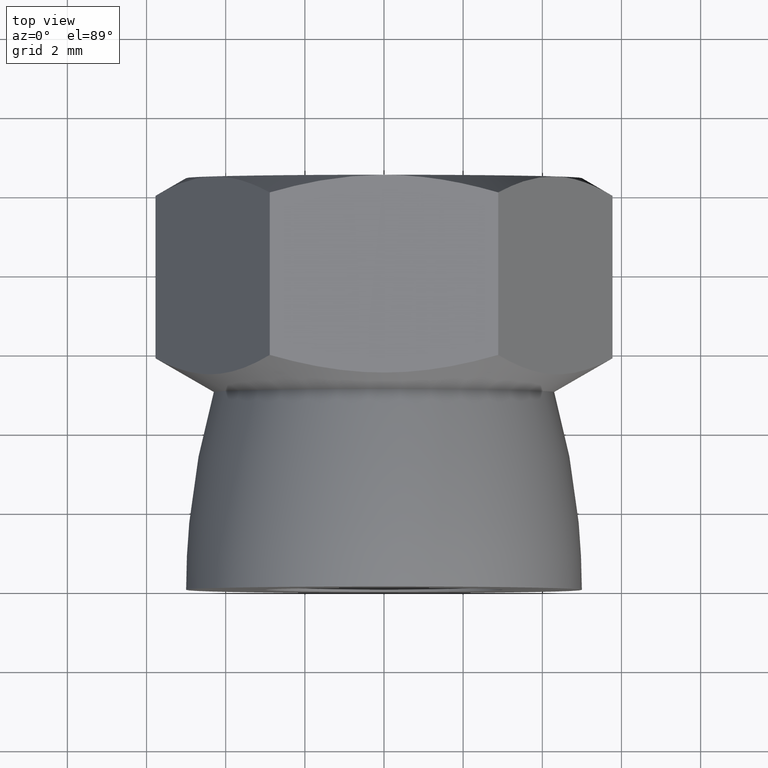
[diagram: clean part render]
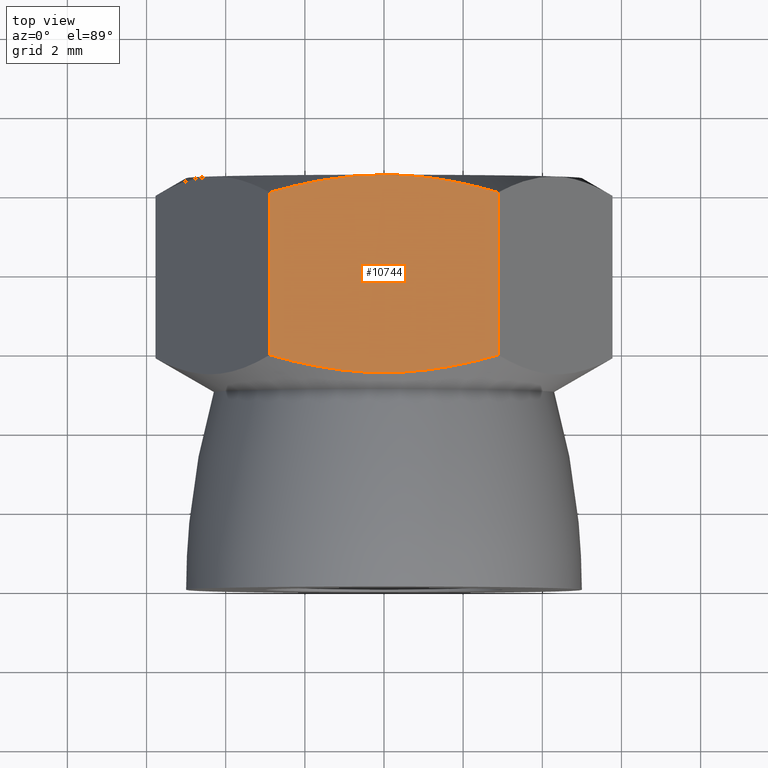
[diagram: same view with one face highlighted and labeled with its STEP entity id]
A machine part, top view. The second image highlights one B-rep face of the part: STEP entity #10744.
In plain terms, the highlighted planar face has unit normal (-0, -0, 1).
Its self-contained STEP definition (entity closure, byte-faithful):
#405 = DIRECTION ( 'NONE',  ( -1.502314598737159524E-16, -4.702619878469625251E-33, 1.000000000000000000 ) ) ;
#607 = DIRECTION ( 'NONE',  ( 3.130249737586675703E-17, -1.000000000000000000, -0.000000000000000000 ) ) ;
#961 = LINE ( 'NONE', #10846, #4904 ) ;
#1360 = PLANE ( 'NONE',  #1776 ) ;
#1776 = AXIS2_PLACEMENT_3D ( 'NONE', #6687, #405, #14448 ) ;
#2018 = ORIENTED_EDGE ( 'NONE', *, *, #15429, .F. ) ;
#2390 = CARTESIAN_POINT ( 'NONE',  ( -0.9718922986298202948, 5.446004199421927261, 4.999999999999997335 ) ) ;
#2754 = B_SPLINE_CURVE_WITH_KNOTS ( 'NONE', 3,
 ( #13995, #5002, #7631, #11419, #13839, #10083 ),
 .UNSPECIFIED., .F., .F.,
 ( 4, 2, 4 ),
 ( 0.008070708573309187672, 0.009531758523483256293, 0.01099280847365732491 ),
 .UNSPECIFIED. ) ;
#2920 = ORIENTED_EDGE ( 'NONE', *, *, #9992, .F. ) ;
#3239 = CARTESIAN_POINT ( 'NONE',  ( -1.148121561336246678E-16, 10.40414518843273228, 4.999999999999998224 ) ) ;
#4169 = VERTEX_POINT ( 'NONE', #5679 ) ;
#4448 = CARTESIAN_POINT ( 'NONE',  ( -2.417244626924480499, 10.09309811635487719, 4.999999999999998224 ) ) ;
#4617 = CARTESIAN_POINT ( 'NONE',  ( -1.936377641173854691, 10.20677601518782041, 4.999999999999998224 ) ) ;
#4781 = CARTESIAN_POINT ( 'NONE',  ( 2.420118327524843238, 5.716021826418211660, 4.999999999999998224 ) ) ;
#4835 = CARTESIAN_POINT ( 'NONE',  ( 1.947366201742063652, 5.603832604811247897, 4.999999999999998224 ) ) ;
#4904 = VECTOR ( 'NONE', #607, 1000.000000000000000 ) ;
#5002 = CARTESIAN_POINT ( 'NONE',  ( 0.4881033300985025414, 10.40414518843273051, 4.999999999999998224 ) ) ;
#5582 = CARTESIAN_POINT ( 'NONE',  ( 2.886751345948128655, 5.850727175817934445, 4.999999999999999112 ) ) ;
#5679 = CARTESIAN_POINT ( 'NONE',  ( -2.886751345948129099, 5.850727175817934445, 4.999999999999998224 ) ) ;
#5974 = CARTESIAN_POINT ( 'NONE',  ( -0.4870926242147031737, 5.404096240944794793, 4.999999999999999112 ) ) ;
#6185 = CARTESIAN_POINT ( 'NONE',  ( 2.886751345948128655, 5.850727175817934445, 4.999999999999999112 ) ) ;
#6501 = DIRECTION ( 'NONE',  ( 3.130249737586675703E-17, -1.000000000000000000, -0.000000000000000000 ) ) ;
#6687 = CARTESIAN_POINT ( 'NONE',  ( 2.886751345948126879, 15.40414518843273584, 4.999999999999998224 ) ) ;
#6702 = CARTESIAN_POINT ( 'NONE',  ( 2.886751345948129099, 9.957563201047536339, 4.999999999999997335 ) ) ;
#6916 = ORIENTED_EDGE ( 'NONE', *, *, #10858, .F. ) ;
#7289 = LINE ( 'NONE', #14095, #10464 ) ;
#7351 = CARTESIAN_POINT ( 'NONE',  ( -1.148121561336246678E-16, 10.40414518843273228, 4.999999999999998224 ) ) ;
#7631 = CARTESIAN_POINT ( 'NONE',  ( 0.9828435001097592938, 10.36105484139827659, 4.999999999999998224 ) ) ;
#8045 = B_SPLINE_CURVE_WITH_KNOTS ( 'NONE', 3,
 ( #10816, #4448, #4617, #10923, #15914, #3239 ),
 .UNSPECIFIED., .F., .F.,
 ( 4, 2, 4 ),
 ( 0.005150343764683536045, 0.006610526168996362292, 0.008070708573309187672 ),
 .UNSPECIFIED. ) ;
#8404 = ORIENTED_EDGE ( 'NONE', *, *, #14119, .T. ) ;
#8536 = CARTESIAN_POINT ( 'NONE',  ( -2.886751345948129099, 5.850727175817934445, 4.999999999999998224 ) ) ;
#9089 = VERTEX_POINT ( 'NONE', #14305 ) ;
#9992 = EDGE_CURVE ( 'NONE', #12926, #11579, #961, .T. ) ;
#10083 = CARTESIAN_POINT ( 'NONE',  ( 2.886751345948129099, 9.957563201047536339, 4.999999999999997335 ) ) ;
#10464 = VECTOR ( 'NONE', #6501, 1000.000000000000000 ) ;
#10744 = ADVANCED_FACE ( 'NONE', ( #14163 ), #1360, .T. ) ;
#10816 = CARTESIAN_POINT ( 'NONE',  ( -2.886751345948127767, 9.957563201047536339, 4.999999999999997335 ) ) ;
#10846 = CARTESIAN_POINT ( 'NONE',  ( 2.886751345948126879, 15.40414518843273584, 4.999999999999998224 ) ) ;
#10858 = EDGE_CURVE ( 'NONE', #11579, #4169, #14603, .T. ) ;
#10897 = VERTEX_POINT ( 'NONE', #7351 ) ;
#10923 = CARTESIAN_POINT ( 'NONE',  ( -0.9724665692850861243, 10.36221474958064093, 4.999999999999996447 ) ) ;
#11419 = CARTESIAN_POINT ( 'NONE',  ( 1.947085426416876652, 10.20452448131304735, 4.999999999999998224 ) ) ;
#11579 = VERTEX_POINT ( 'NONE', #5582 ) ;
#11764 = ORIENTED_EDGE ( 'NONE', *, *, #15101, .F. ) ;
#11861 = EDGE_LOOP ( 'NONE', ( #11764, #8404, #6916, #2920, #2018 ) ) ;
#12524 = CARTESIAN_POINT ( 'NONE',  ( -1.936092870082978923, 5.601447280723085953, 4.999999999999998224 ) ) ;
#12926 = VERTEX_POINT ( 'NONE', #6702 ) ;
#13772 = CARTESIAN_POINT ( 'NONE',  ( -2.417105151674776131, 5.715151997474114509, 4.999999999999997335 ) ) ;
#13839 = CARTESIAN_POINT ( 'NONE',  ( 2.419979747126325353, 10.09230855516245384, 4.999999999999999112 ) ) ;
#13995 = CARTESIAN_POINT ( 'NONE',  ( -1.148121561336246678E-16, 10.40414518843273228, 4.999999999999998224 ) ) ;
#14095 = CARTESIAN_POINT ( 'NONE',  ( -2.886751345948130432, 15.40414518843273584, 4.999999999999997335 ) ) ;
#14119 = EDGE_CURVE ( 'NONE', #9089, #4169, #7289, .T. ) ;
#14163 = FACE_OUTER_BOUND ( 'NONE', #11861, .T. ) ;
#14305 = CARTESIAN_POINT ( 'NONE',  ( -2.886751345948127767, 9.957563201047536339, 4.999999999999997335 ) ) ;
#14448 = DIRECTION ( 'NONE',  ( 1.000000000000000000, 0.000000000000000000, 1.502314598737159524E-16 ) ) ;
#14603 = B_SPLINE_CURVE_WITH_KNOTS ( 'NONE', 3,
 ( #6185, #4781, #4835, #14900, #14838, #5974, #2390, #12524, #13772, #8536 ),
 .UNSPECIFIED., .F., .F.,
 ( 4, 2, 2, 2, 4 ),
 ( 0.002116063980015261709, 0.003572946038796644738, 0.005029828097578027332, 0.006486710156359411228, 0.007943592215140793389 ),
 .UNSPECIFIED. ) ;
#14838 = CARTESIAN_POINT ( 'NONE',  ( 0.4888315940263756043, 5.404194223216499005, 4.999999999999999112 ) ) ;
#14900 = CARTESIAN_POINT ( 'NONE',  ( 0.9834215448287400019, 5.447308261708218247, 4.999999999999997335 ) ) ;
#15101 = EDGE_CURVE ( 'NONE', #9089, #10897, #8045, .T. ) ;
#15429 = EDGE_CURVE ( 'NONE', #10897, #12926, #2754, .T. ) ;
#15914 = CARTESIAN_POINT ( 'NONE',  ( -0.4878135028931862571, 10.40414518843273406, 4.999999999999998224 ) ) ;